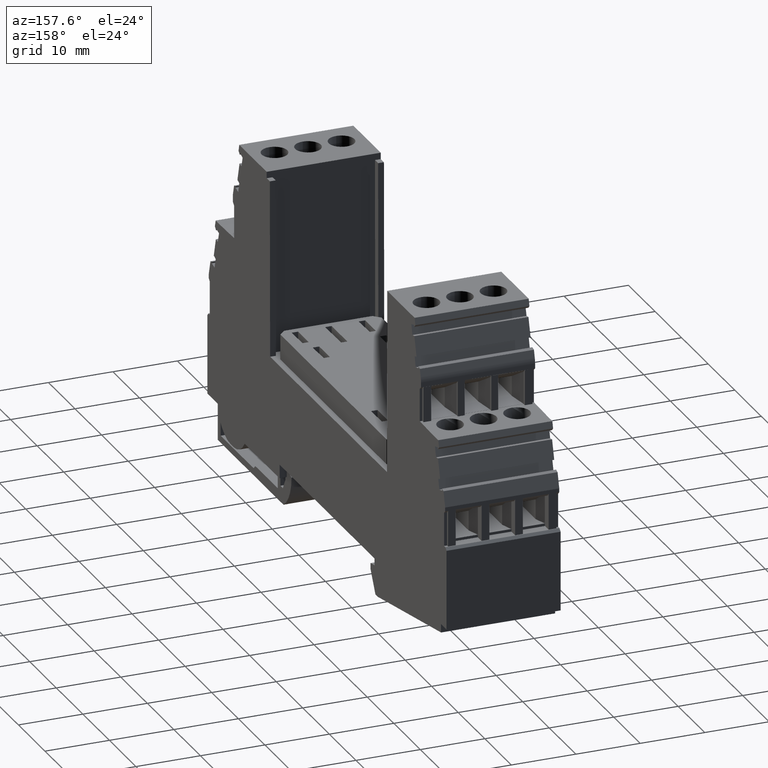
[diagram: clean part render]
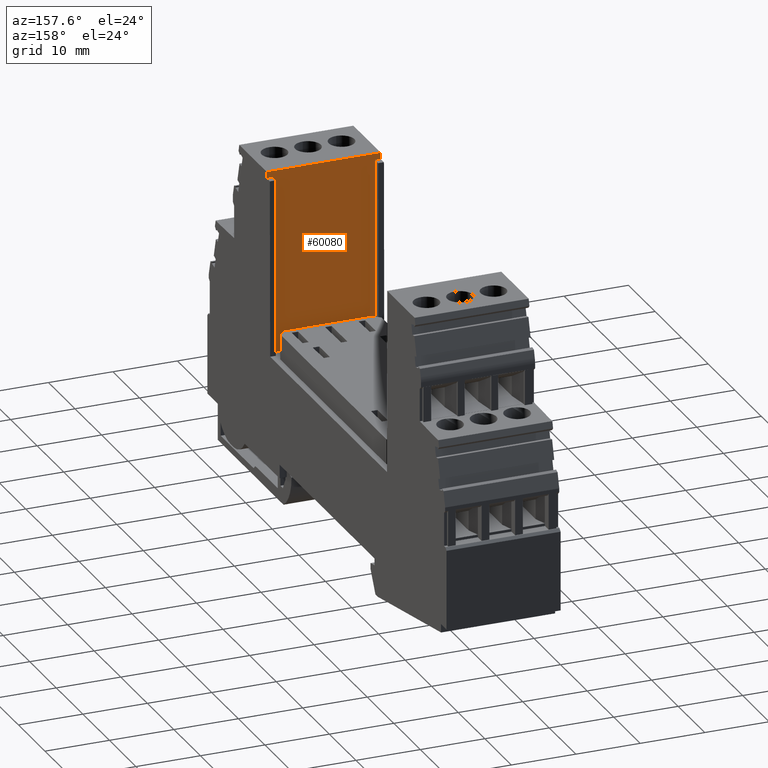
[diagram: same view with one face highlighted and labeled with its STEP entity id]
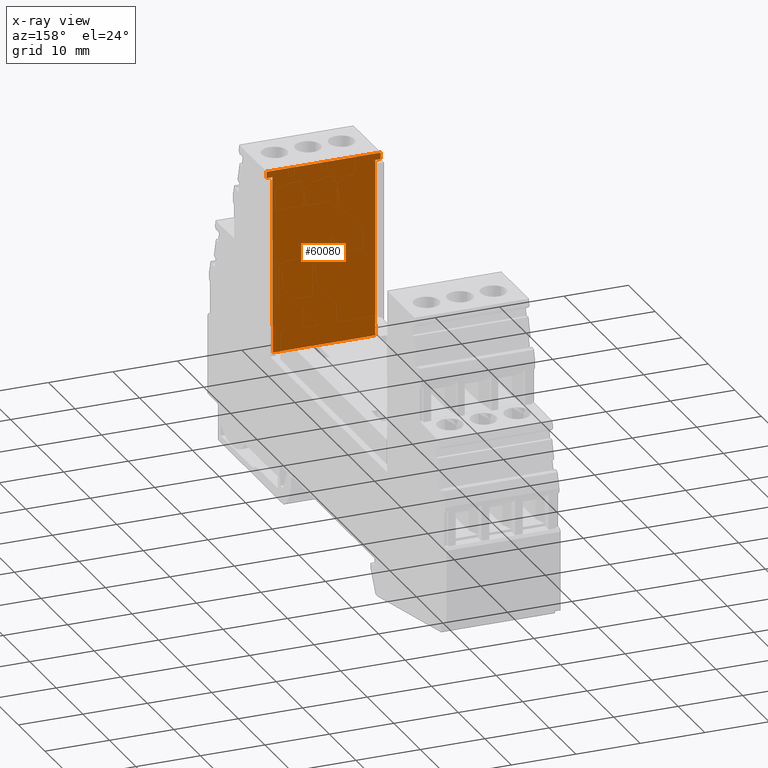
[diagram: x-ray of the same camera — body ghosted, the highlighted face saturated]
A machine part, auxiliary view. The second image highlights one B-rep face of the part: STEP entity #60080.
The next image is the same camera in x-ray: the body ghosted, the highlighted face saturated — about 0% of this face is hidden behind the body in this view.
In plain terms, the highlighted planar face has unit normal (-0, -1, -0.0035).
Its self-contained STEP definition (entity closure, byte-faithful):
#1560=CARTESIAN_POINT('',(46.6418672217727,61.056274052444,-37.3));
#1570=VERTEX_POINT('',#1560);
#1600=CARTESIAN_POINT('',(46.923760941475,-19.6999999999998,-37.3));
#1610=DIRECTION('',(-0.00349065141522361,0.99999390765779,0.));
#1620=VECTOR('',#1610,1.);
#1630=LINE('',#1600,#1620);
#1640=CARTESIAN_POINT('',(46.6453578944543,60.056274052444,-37.3));
#1650=VERTEX_POINT('',#1640);
#1660=EDGE_CURVE('',#1650,#1570,#1630,.T.);
#19320=CARTESIAN_POINT('',(46.6453578944543,60.056274052444,-55.));
#19330=VERTEX_POINT('',#19320);
#19360=CARTESIAN_POINT('',(46.7833690847091,20.5191410000002,-55.));
#19370=DIRECTION('',(-0.00349065141522361,0.99999390765779,
3.14057048929527E-23));
#19380=VECTOR('',#19370,1.);
#19390=LINE('',#19360,#19380);
#19400=CARTESIAN_POINT('',(46.6418672217727,61.056274052444,-55.));
#19410=VERTEX_POINT('',#19400);
#19420=EDGE_CURVE('',#19330,#19410,#19390,.T.);
#31360=CARTESIAN_POINT('',(46.7413513931982,32.556274052444,-38.2));
#31370=VERTEX_POINT('',#31360);
#31400=CARTESIAN_POINT('',(46.7413513931981,32.556274052444,
-3.74999999990759));
#31410=DIRECTION('',(1.22464679914735E-16,7.51478429024826E-19,1.));
#31420=VECTOR('',#31410,1.);
#31430=LINE('',#31400,#31420);
#31440=CARTESIAN_POINT('',(46.7413513931982,32.556274052444,
-54.1000000000001));
#31450=VERTEX_POINT('',#31440);
#31460=EDGE_CURVE('',#31450,#31370,#31430,.T.);
#52280=CARTESIAN_POINT('',(46.6453578944543,60.056274052444,
-54.1000000000001));
#52290=VERTEX_POINT('',#52280);
#52390=CARTESIAN_POINT('',(46.923760941475,-19.6999999999998,
-54.1000000000001));
#52400=DIRECTION('',(0.00349065141522361,-0.99999390765779,
-4.33680868994202E-19));
#52410=VECTOR('',#52400,1.);
#52420=LINE('',#52390,#52410);
#52430=EDGE_CURVE('',#52290,#31450,#52420,.T.);
#52600=CARTESIAN_POINT('',(46.6453578944543,60.056274052444,
-3.74999999990759));
#52610=DIRECTION('',(-1.22464679914735E-16,-7.51478429024826E-19,-1.));
#52620=VECTOR('',#52610,1.);
#52630=LINE('',#52600,#52620);
#52640=EDGE_CURVE('',#52290,#19330,#52630,.T.);
#53470=CARTESIAN_POINT('',(46.6418672217727,61.056274052444,
-3.74999999990759));
#53480=DIRECTION('',(-1.22464679914735E-16,-7.51478429024826E-19,-1.));
#53490=VECTOR('',#53480,1.);
#53500=LINE('',#53470,#53490);
#53510=EDGE_CURVE('',#1570,#19410,#53500,.T.);
#59850=CARTESIAN_POINT('',(46.6453578944543,60.056274052444,-55.));
#59860=DIRECTION('',(-0.99999390765779,-0.00349065141522361,
1.22466556967239E-16));
#59870=DIRECTION('',(0.00349065141522361,-0.99999390765779,
-3.14057048929527E-23));
#59880=AXIS2_PLACEMENT_3D('',#59850,#59860,#59870);
#59890=PLANE('',#59880);
#59900=ORIENTED_EDGE('',*,*,#19420,.T.);
#59910=ORIENTED_EDGE('',*,*,#52640,.T.);
#59920=ORIENTED_EDGE('',*,*,#52430,.F.);
#59930=ORIENTED_EDGE('',*,*,#31460,.F.);
#59940=CARTESIAN_POINT('',(46.923760941475,-19.6999999999998,-38.2));
#59950=DIRECTION('',(-0.00349065141522361,0.99999390765779,
4.33680868994202E-19));
#59960=VECTOR('',#59950,1.);
#59970=LINE('',#59940,#59960);
#59980=CARTESIAN_POINT('',(46.6453578944543,60.056274052444,-38.2));
#59990=VERTEX_POINT('',#59980);
#60000=EDGE_CURVE('',#31370,#59990,#59970,.T.);
#60010=ORIENTED_EDGE('',*,*,#60000,.F.);
#60020=EDGE_CURVE('',#1650,#59990,#52630,.T.);
#60030=ORIENTED_EDGE('',*,*,#60020,.T.);
#60040=ORIENTED_EDGE('',*,*,#1660,.F.);
#60050=ORIENTED_EDGE('',*,*,#53510,.F.);
#60060=EDGE_LOOP('',(#60050,#60040,#60030,#60010,#59930,#59920,#59910,
#59900));
#60070=FACE_OUTER_BOUND('',#60060,.T.);
#60080=ADVANCED_FACE('',(#60070),#59890,.F.);